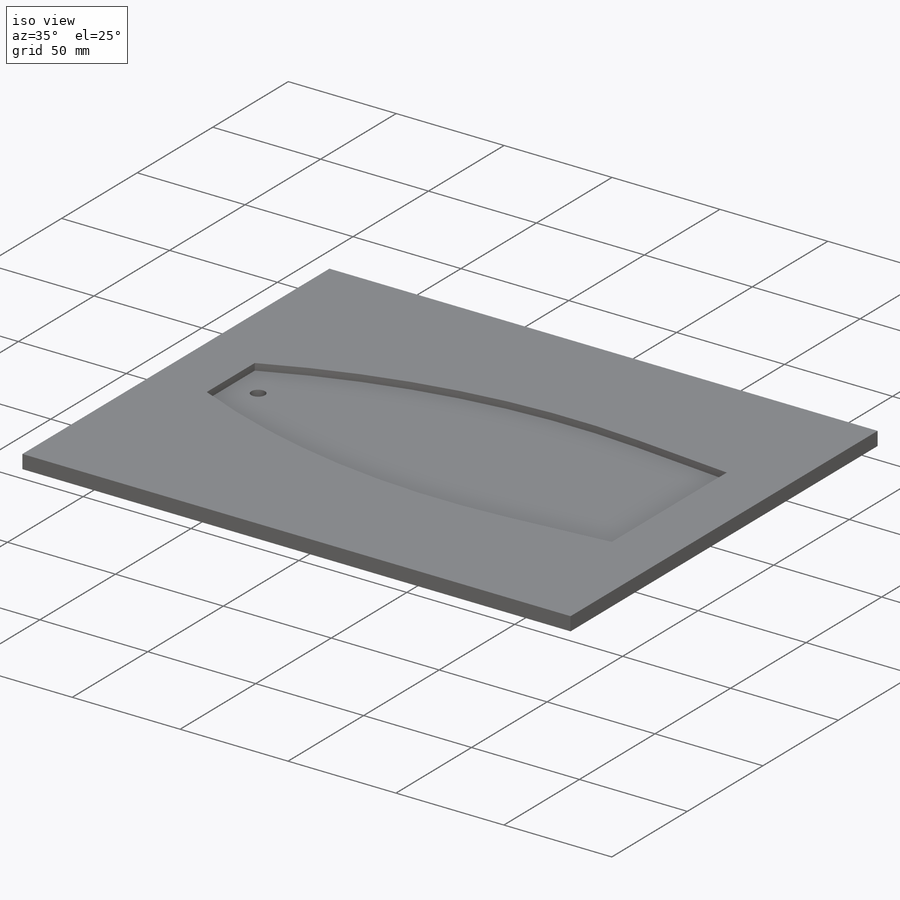
[diagram: iso view]
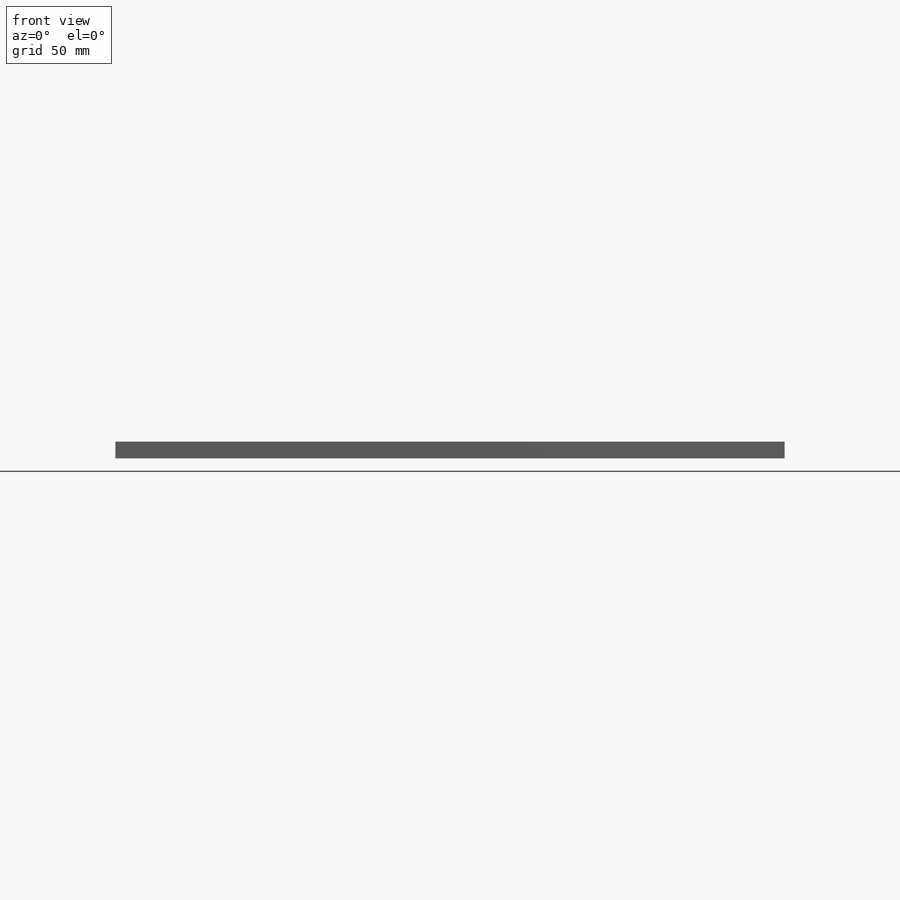
[diagram: front view]
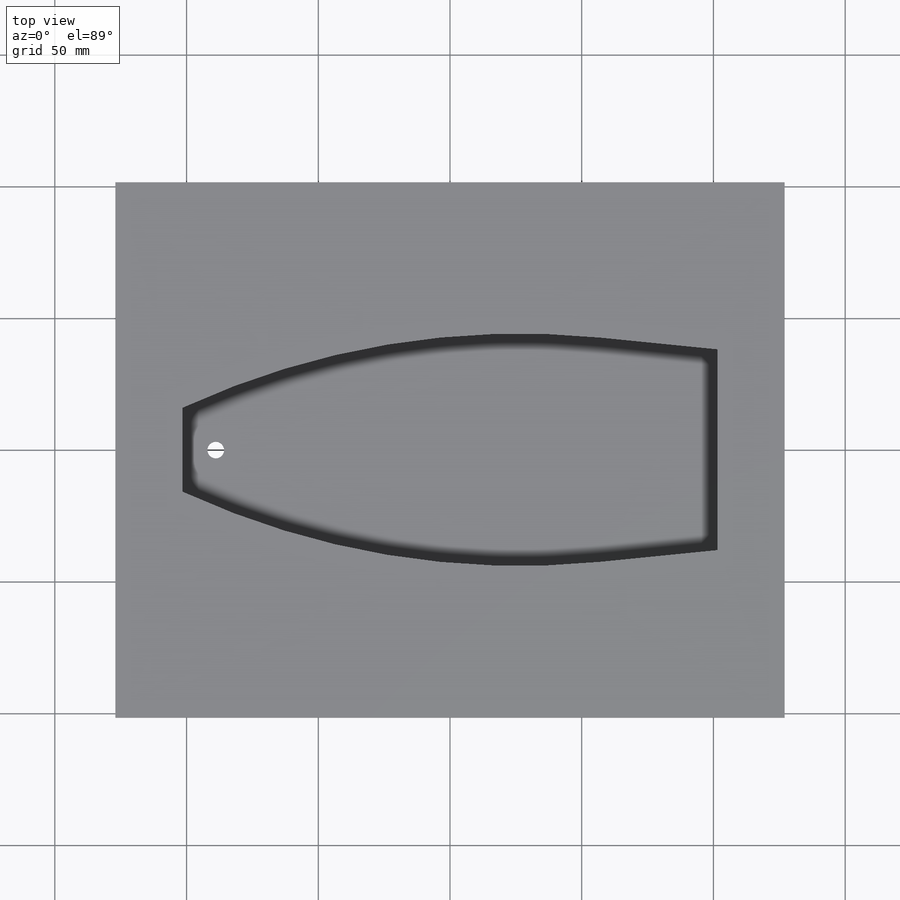
[diagram: top view]
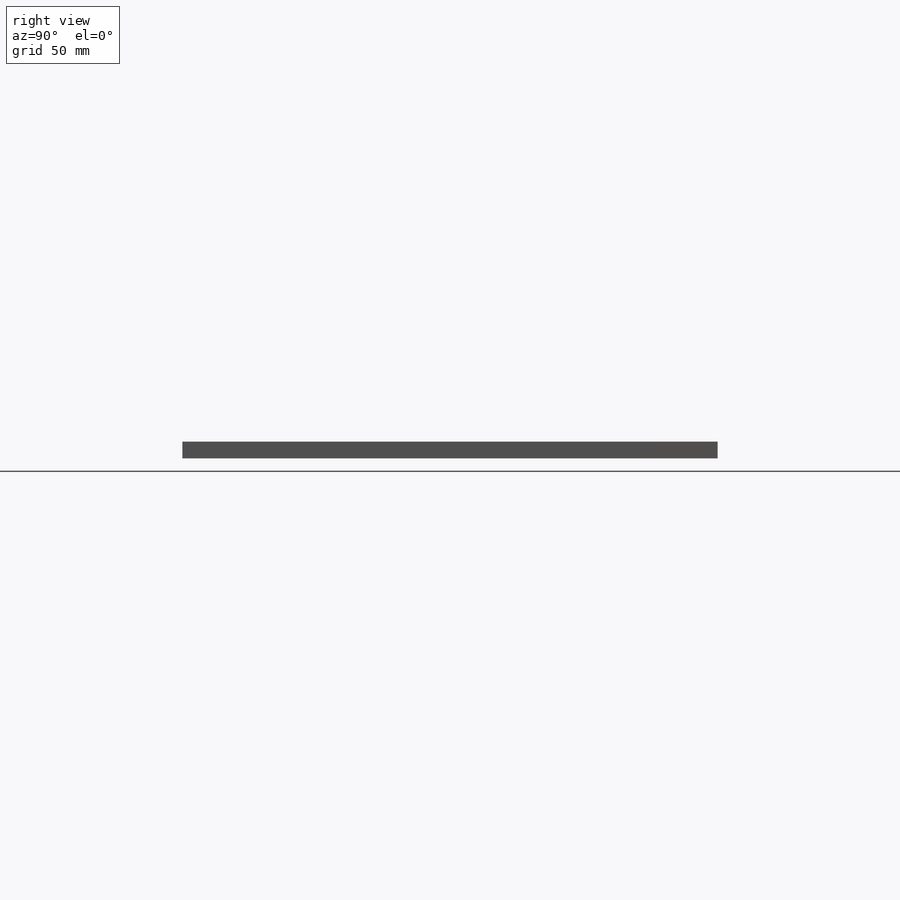
[diagram: right view]
SOLIDWORKS PART (.sldprt)
format: sldprt  version: not decoded by parser v0  size: 437,248 bytes
history: native  units: mm
features: sketch x5, cut_extrude x2, material x1, extrude x1, fillet x1 (+11 scaffold rows collapsed)
feature tree (21):
  scaffold x11  (default folders/planes/origin — collapsed)
  material  "Material <not specified>"
  sketch  "Sketch1"  dims[D1=254.0mm D2=203.2mm]
  extrude  "Boss-Extrude1"  Depth=6.35mm
  sketch  "Sketch2"  dims[D1=6.35mm D2=38.1mm]
  cut_extrude  "Cut-Extrude1"  Depth=6.35mm
  sketch  "Sketch5"  dims[D1=31.75mm D2=76.2mm D3=203.2mm D4=25.4mm D5=76.2mm D6=76.2mm D7=101.6mm]
  cut_extrude  "Cut-Extrude3"  Depth=3.175mm
  fillet  "Fillet2"  Radius=304.8mm
  sketch  "Sketch9"  dims[D1=152.4mm D2=142.24mm]
  sketch  "Sketch10"  dims[D2=5.0deg D4=5.0deg D1=19.0 D3=19.0]
decode coverage: 9 of 9 modeling features carry decoded parameters
note: suppression state not decoded; provenance and decode notes live in map.json
